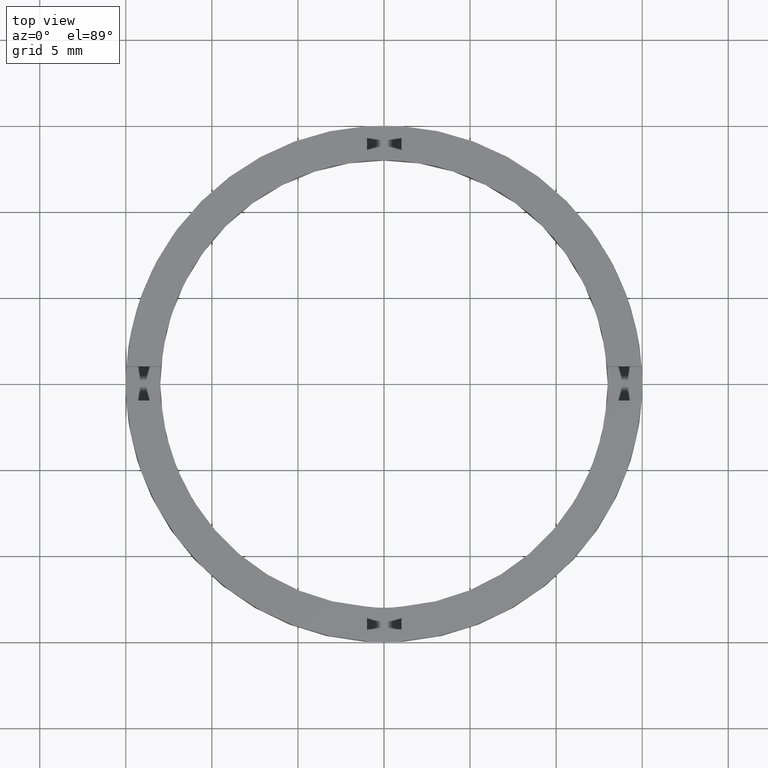
[diagram: clean part render]
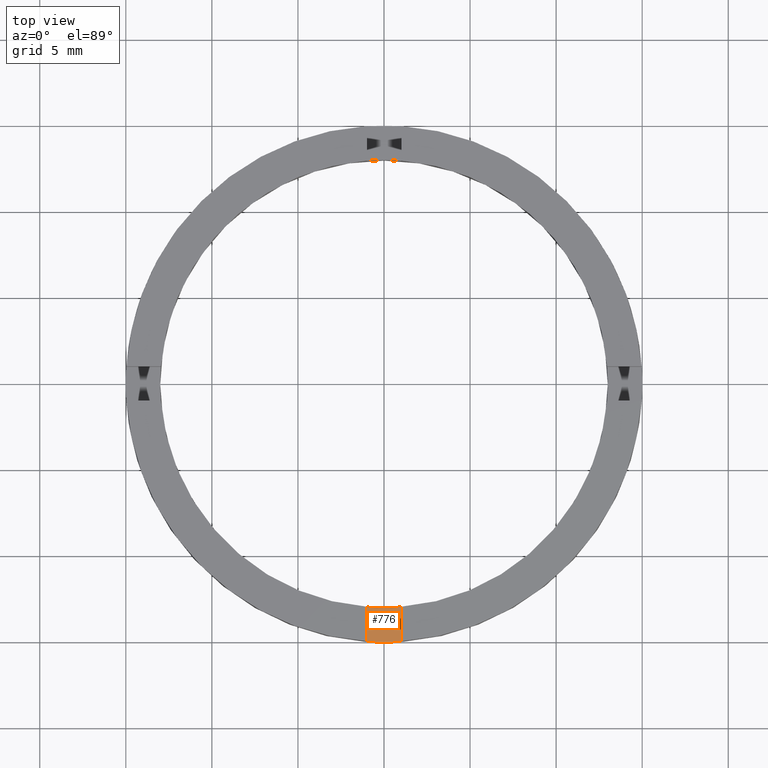
[diagram: same view with one face highlighted and labeled with its STEP entity id]
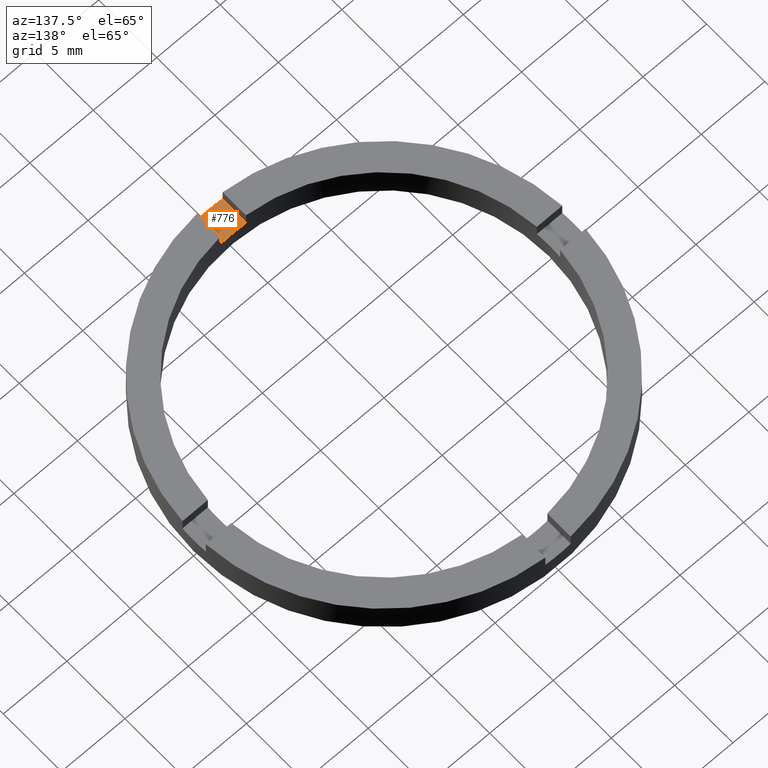
[diagram: same view with one face highlighted and labeled with its STEP entity id]
A machine part, top view. The second image highlights one B-rep face of the part: STEP entity #776.
A second angle (auxiliary view) of the same face is appended — the face is thin or edge-on in the first view.
In plain terms, the highlighted planar face has unit normal (-0, 0, 1).
Its self-contained STEP definition (entity closure, byte-faithful):
#14 = DIRECTION ( 'NONE',  ( 1.000000000000000000, 0.000000000000000000, 0.000000000000000000 ) ) ;
#30 = FACE_OUTER_BOUND ( 'NONE', #715, .T. ) ;
#69 = CARTESIAN_POINT ( 'NONE',  ( 0.9999999999998356870, -5.000000000000179412, 1.500000000000000000 ) ) ;
#82 = VECTOR ( 'NONE', #216, 1000.000000000000000 ) ;
#122 = AXIS2_PLACEMENT_3D ( 'NONE', #300, #634, #14 ) ;
#135 = EDGE_CURVE ( 'NONE', #443, #425, #356, .T. ) ;
#169 = ORIENTED_EDGE ( 'NONE', *, *, #760, .T. ) ;
#174 = EDGE_CURVE ( 'NONE', #443, #483, #370, .T. ) ;
#216 = DIRECTION ( 'NONE',  ( 1.301042606982605321E-16, -1.000000000000000000, 0.000000000000000000 ) ) ;
#244 = PLANE ( 'NONE',  #122 ) ;
#247 = DIRECTION ( 'NONE',  ( -1.301042606982605321E-16, 1.000000000000000000, -0.000000000000000000 ) ) ;
#260 = DIRECTION ( 'NONE',  ( -0.000000000000000000, 0.000000000000000000, 1.000000000000000000 ) ) ;
#267 = EDGE_CURVE ( 'NONE', #494, #483, #334, .T. ) ;
#300 = CARTESIAN_POINT ( 'NONE',  ( 0.000000000000000000, 0.000000000000000000, 1.500000000000000000 ) ) ;
#334 = LINE ( 'NONE', #69, #361 ) ;
#356 = LINE ( 'NONE', #569, #82 ) ;
#361 = VECTOR ( 'NONE', #247, 1000.000000000000000 ) ;
#370 = CIRCLE ( 'NONE', #526, 13.00000000000000178 ) ;
#377 = CARTESIAN_POINT ( 'NONE',  ( 0.000000000000000000, 0.000000000000000000, 1.500000000000000000 ) ) ;
#425 = VERTEX_POINT ( 'NONE', #571 ) ;
#443 = VERTEX_POINT ( 'NONE', #525 ) ;
#483 = VERTEX_POINT ( 'NONE', #532 ) ;
#494 = VERTEX_POINT ( 'NONE', #584 ) ;
#502 = DIRECTION ( 'NONE',  ( 1.000000000000000000, 0.000000000000000000, 0.000000000000000000 ) ) ;
#525 = CARTESIAN_POINT ( 'NONE',  ( -1.000000000000163203, -12.96148139681570832, 1.500000000000000000 ) ) ;
#526 = AXIS2_PLACEMENT_3D ( 'NONE', #377, #260, #502 ) ;
#530 = DIRECTION ( 'NONE',  ( 1.000000000000000000, 0.000000000000000000, 0.000000000000000000 ) ) ;
#532 = CARTESIAN_POINT ( 'NONE',  ( 0.9999999999998366862, -12.96148139681573497, 1.500000000000000000 ) ) ;
#543 = CARTESIAN_POINT ( 'NONE',  ( 0.000000000000000000, 0.000000000000000000, 1.500000000000000000 ) ) ;
#557 = CIRCLE ( 'NONE', #706, 15.00000000000000000 ) ;
#569 = CARTESIAN_POINT ( 'NONE',  ( -1.000000000000164313, -5.000000000000179412, 1.500000000000000000 ) ) ;
#571 = CARTESIAN_POINT ( 'NONE',  ( -1.000000000000162981, -14.96662954709575466, 1.500000000000000000 ) ) ;
#584 = CARTESIAN_POINT ( 'NONE',  ( 0.9999999999998369082, -14.96662954709577775, 1.500000000000000000 ) ) ;
#633 = ORIENTED_EDGE ( 'NONE', *, *, #174, .F. ) ;
#634 = DIRECTION ( 'NONE',  ( -0.000000000000000000, 0.000000000000000000, 1.000000000000000000 ) ) ;
#688 = ORIENTED_EDGE ( 'NONE', *, *, #135, .T. ) ;
#698 = ORIENTED_EDGE ( 'NONE', *, *, #267, .T. ) ;
#706 = AXIS2_PLACEMENT_3D ( 'NONE', #543, #710, #530 ) ;
#710 = DIRECTION ( 'NONE',  ( -0.000000000000000000, 0.000000000000000000, 1.000000000000000000 ) ) ;
#715 = EDGE_LOOP ( 'NONE', ( #169, #698, #633, #688 ) ) ;
#760 = EDGE_CURVE ( 'NONE', #425, #494, #557, .T. ) ;
#776 = ADVANCED_FACE ( 'NONE', ( #30 ), #244, .T. ) ;